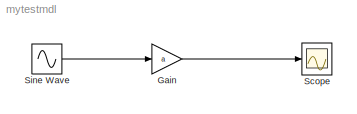
MODEL mytestmdl
KIND model
CONFIG StartFcn = %The GUI handles are by default hidden, turn them on\nset(0,'ShowHiddenHandles','on');\n\n%Set up the arguments that will go into the gain block event callback listener\nblk = 'mytestmdl/Gain';\nevent = 'PostOutputs';\nlistener = @updategui;\n\n%Create the listener\nh = add_exec_event_listener(blk, event, listener);\n
BLOCK [Gain] Gain
  Gain = a
  OutDataTypeStr = Inherit: Inherit via internal rule
  ParamDataTypeStr = Inherit: Inherit via internal rule
  SID = 1
  SaturateOnIntegerOverflow = off
BLOCK [Scope] Scope
  DataFormat = StructureWithTime
  Floating = off
  NumInputPorts = 1
  Ports = [1]
  SID = 2
  SampleTime = 0
  YMax = 12.5
  YMin = -12.5
BLOCK [Sin] Sine Wave
  Ports = [0, 1]
  SID = 3
  SampleTime = 0
LINE Gain:1 -> Scope:1
LINE Sine Wave:1 -> Gain:1
